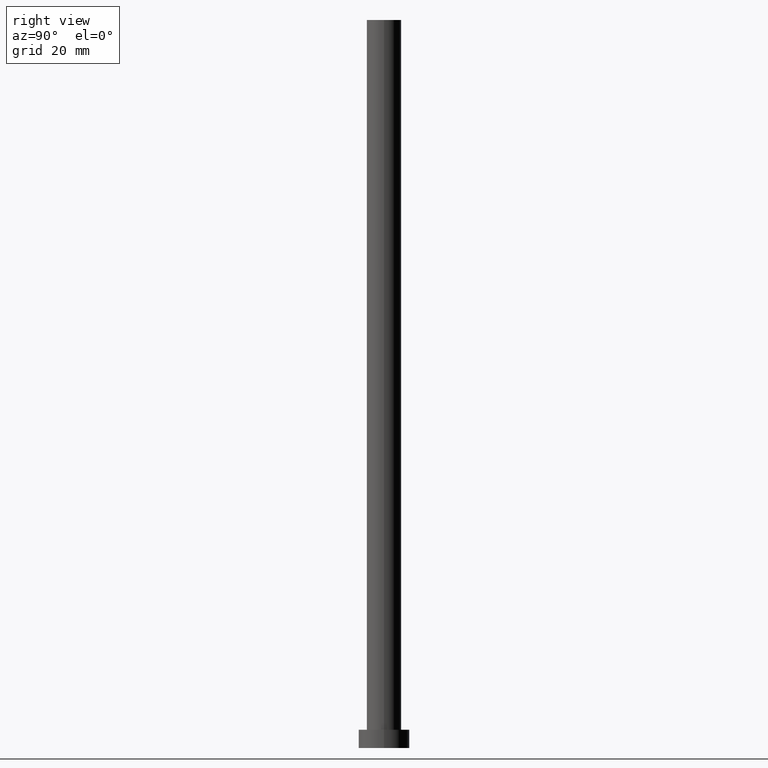
[diagram: clean part render]
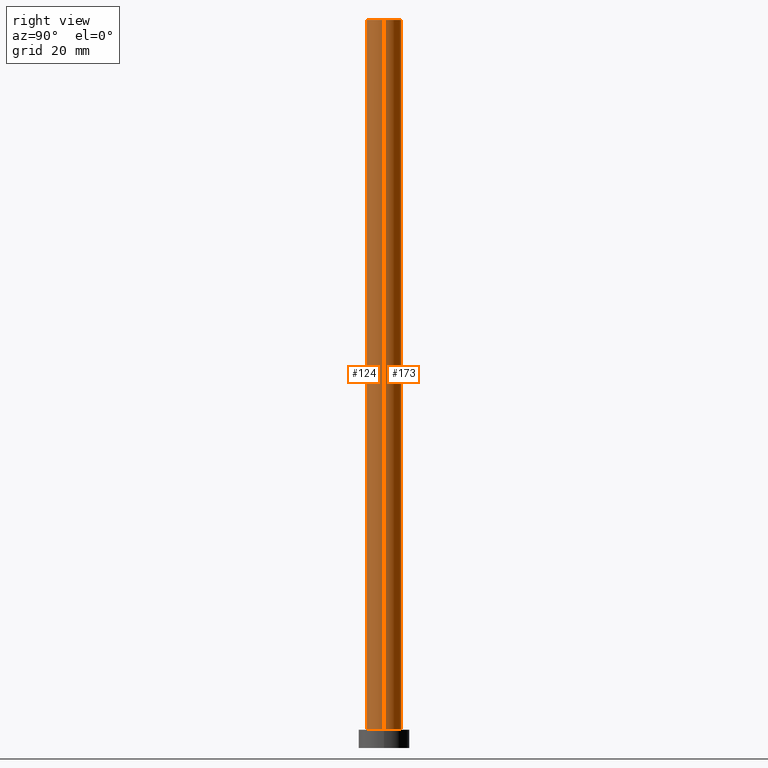
[diagram: same view with one multi-face feature highlighted, each face labeled with its STEP entity id]
A machine part, right view. The highlighted faces form ONE feature: a constant-radius fillet chain: 2 tangent blend faces with common blend radius 4.75 mm. The faces share edges in the B-rep.
Their STEP definitions:
[1] entity #124 (Cylinder):
#1 = FACE_OUTER_BOUND ( 'NONE', #89, .T. ) ;
#10 = CARTESIAN_POINT ( 'NONE',  ( 4.750000000000000888, 5.817072295949928412E-16, 200.0000000000000000 ) ) ;
#21 = DIRECTION ( 'NONE',  ( 1.000000000000000000, 0.000000000000000000, 0.000000000000000000 ) ) ;
#35 = DIRECTION ( 'NONE',  ( 0.000000000000000000, 0.000000000000000000, 1.000000000000000000 ) ) ;
#43 = DIRECTION ( 'NONE',  ( 0.000000000000000000, 0.000000000000000000, 1.000000000000000000 ) ) ;
#48 = CARTESIAN_POINT ( 'NONE',  ( 4.750000000000000888, 5.817072295949928412E-16, 5.000000000000000000 ) ) ;
#54 = AXIS2_PLACEMENT_3D ( 'NONE', #134, #43, #97 ) ;
#56 = DIRECTION ( 'NONE',  ( -0.000000000000000000, -0.000000000000000000, -1.000000000000000000 ) ) ;
#57 = VERTEX_POINT ( 'NONE', #128 ) ;
#60 = CARTESIAN_POINT ( 'NONE',  ( 0.000000000000000000, 0.000000000000000000, 200.0000000000000000 ) ) ;
#82 = DIRECTION ( 'NONE',  ( -0.000000000000000000, -0.000000000000000000, -1.000000000000000000 ) ) ;
#88 = LINE ( 'NONE', #192, #122 ) ;
#89 = EDGE_LOOP ( 'NONE', ( #105, #107, #131, #236 ) ) ;
#91 = EDGE_CURVE ( 'NONE', #57, #125, #88, .T. ) ;
#97 = DIRECTION ( 'NONE',  ( 1.000000000000000000, 0.000000000000000000, 0.000000000000000000 ) ) ;
#103 = DIRECTION ( 'NONE',  ( -1.000000000000000000, 0.000000000000000000, 0.000000000000000000 ) ) ;
#105 = ORIENTED_EDGE ( 'NONE', *, *, #230, .F. ) ;
#107 = ORIENTED_EDGE ( 'NONE', *, *, #137, .F. ) ;
#121 = AXIS2_PLACEMENT_3D ( 'NONE', #60, #216, #103 ) ;
#122 = VECTOR ( 'NONE', #56, 1000.000000000000000 ) ;
#124 = ADVANCED_FACE ( 'NONE', ( #1 ), #239, .T. ) ;
#125 = VERTEX_POINT ( 'NONE', #250 ) ;
#128 = CARTESIAN_POINT ( 'NONE',  ( -4.750000000000000888, 0.000000000000000000, 200.0000000000000000 ) ) ;
#129 = VECTOR ( 'NONE', #82, 1000.000000000000000 ) ;
#131 = ORIENTED_EDGE ( 'NONE', *, *, #91, .T. ) ;
#132 = CARTESIAN_POINT ( 'NONE',  ( 4.750000000000000888, 5.817072295949928412E-16, 200.0000000000000000 ) ) ;
#134 = CARTESIAN_POINT ( 'NONE',  ( 0.000000000000000000, 0.000000000000000000, 5.000000000000000000 ) ) ;
#137 = EDGE_CURVE ( 'NONE', #57, #140, #227, .T. ) ;
#140 = VERTEX_POINT ( 'NONE', #132 ) ;
#145 = AXIS2_PLACEMENT_3D ( 'NONE', #208, #35, #21 ) ;
#155 = EDGE_CURVE ( 'NONE', #125, #235, #181, .T. ) ;
#181 = CIRCLE ( 'NONE', #54, 4.750000000000000888 ) ;
#192 = CARTESIAN_POINT ( 'NONE',  ( -4.750000000000000888, 0.000000000000000000, 200.0000000000000000 ) ) ;
#198 = LINE ( 'NONE', #10, #129 ) ;
#208 = CARTESIAN_POINT ( 'NONE',  ( 0.000000000000000000, 0.000000000000000000, 200.0000000000000000 ) ) ;
#216 = DIRECTION ( 'NONE',  ( -0.000000000000000000, -0.000000000000000000, -1.000000000000000000 ) ) ;
#227 = CIRCLE ( 'NONE', #145, 4.750000000000000888 ) ;
#230 = EDGE_CURVE ( 'NONE', #140, #235, #198, .T. ) ;
#235 = VERTEX_POINT ( 'NONE', #48 ) ;
#236 = ORIENTED_EDGE ( 'NONE', *, *, #155, .T. ) ;
#239 = CYLINDRICAL_SURFACE ( 'NONE', #121, 4.750000000000000888 ) ;
#250 = CARTESIAN_POINT ( 'NONE',  ( -4.750000000000000888, 0.000000000000000000, 5.000000000000000000 ) ) ;
[2] entity #173 (Cylinder):
#3 = DIRECTION ( 'NONE',  ( -1.000000000000000000, 0.000000000000000000, 0.000000000000000000 ) ) ;
#9 = AXIS2_PLACEMENT_3D ( 'NONE', #255, #77, #186 ) ;
#10 = CARTESIAN_POINT ( 'NONE',  ( 4.750000000000000888, 5.817072295949928412E-16, 200.0000000000000000 ) ) ;
#19 = ORIENTED_EDGE ( 'NONE', *, *, #230, .T. ) ;
#20 = DIRECTION ( 'NONE',  ( 1.000000000000000000, 0.000000000000000000, 0.000000000000000000 ) ) ;
#24 = DIRECTION ( 'NONE',  ( -0.000000000000000000, -0.000000000000000000, -1.000000000000000000 ) ) ;
#48 = CARTESIAN_POINT ( 'NONE',  ( 4.750000000000000888, 5.817072295949928412E-16, 5.000000000000000000 ) ) ;
#53 = EDGE_CURVE ( 'NONE', #140, #57, #171, .T. ) ;
#56 = DIRECTION ( 'NONE',  ( -0.000000000000000000, -0.000000000000000000, -1.000000000000000000 ) ) ;
#57 = VERTEX_POINT ( 'NONE', #128 ) ;
#74 = AXIS2_PLACEMENT_3D ( 'NONE', #167, #147, #20 ) ;
#77 = DIRECTION ( 'NONE',  ( 0.000000000000000000, 0.000000000000000000, 1.000000000000000000 ) ) ;
#82 = DIRECTION ( 'NONE',  ( -0.000000000000000000, -0.000000000000000000, -1.000000000000000000 ) ) ;
#88 = LINE ( 'NONE', #192, #122 ) ;
#91 = EDGE_CURVE ( 'NONE', #57, #125, #88, .T. ) ;
#95 = FACE_OUTER_BOUND ( 'NONE', #139, .T. ) ;
#106 = EDGE_CURVE ( 'NONE', #235, #125, #234, .T. ) ;
#116 = CARTESIAN_POINT ( 'NONE',  ( 0.000000000000000000, 0.000000000000000000, 200.0000000000000000 ) ) ;
#122 = VECTOR ( 'NONE', #56, 1000.000000000000000 ) ;
#125 = VERTEX_POINT ( 'NONE', #250 ) ;
#128 = CARTESIAN_POINT ( 'NONE',  ( -4.750000000000000888, 0.000000000000000000, 200.0000000000000000 ) ) ;
#129 = VECTOR ( 'NONE', #82, 1000.000000000000000 ) ;
#132 = CARTESIAN_POINT ( 'NONE',  ( 4.750000000000000888, 5.817072295949928412E-16, 200.0000000000000000 ) ) ;
#139 = EDGE_LOOP ( 'NONE', ( #143, #19, #163, #228 ) ) ;
#140 = VERTEX_POINT ( 'NONE', #132 ) ;
#143 = ORIENTED_EDGE ( 'NONE', *, *, #53, .F. ) ;
#147 = DIRECTION ( 'NONE',  ( 0.000000000000000000, 0.000000000000000000, 1.000000000000000000 ) ) ;
#163 = ORIENTED_EDGE ( 'NONE', *, *, #106, .T. ) ;
#167 = CARTESIAN_POINT ( 'NONE',  ( 0.000000000000000000, 0.000000000000000000, 5.000000000000000000 ) ) ;
#170 = CYLINDRICAL_SURFACE ( 'NONE', #221, 4.750000000000000888 ) ;
#171 = CIRCLE ( 'NONE', #9, 4.750000000000000888 ) ;
#173 = ADVANCED_FACE ( 'NONE', ( #95 ), #170, .T. ) ;
#186 = DIRECTION ( 'NONE',  ( 1.000000000000000000, 0.000000000000000000, 0.000000000000000000 ) ) ;
#192 = CARTESIAN_POINT ( 'NONE',  ( -4.750000000000000888, 0.000000000000000000, 200.0000000000000000 ) ) ;
#198 = LINE ( 'NONE', #10, #129 ) ;
#221 = AXIS2_PLACEMENT_3D ( 'NONE', #116, #24, #3 ) ;
#228 = ORIENTED_EDGE ( 'NONE', *, *, #91, .F. ) ;
#230 = EDGE_CURVE ( 'NONE', #140, #235, #198, .T. ) ;
#234 = CIRCLE ( 'NONE', #74, 4.750000000000000888 ) ;
#235 = VERTEX_POINT ( 'NONE', #48 ) ;
#250 = CARTESIAN_POINT ( 'NONE',  ( -4.750000000000000888, 0.000000000000000000, 5.000000000000000000 ) ) ;
#255 = CARTESIAN_POINT ( 'NONE',  ( 0.000000000000000000, 0.000000000000000000, 200.0000000000000000 ) ) ;